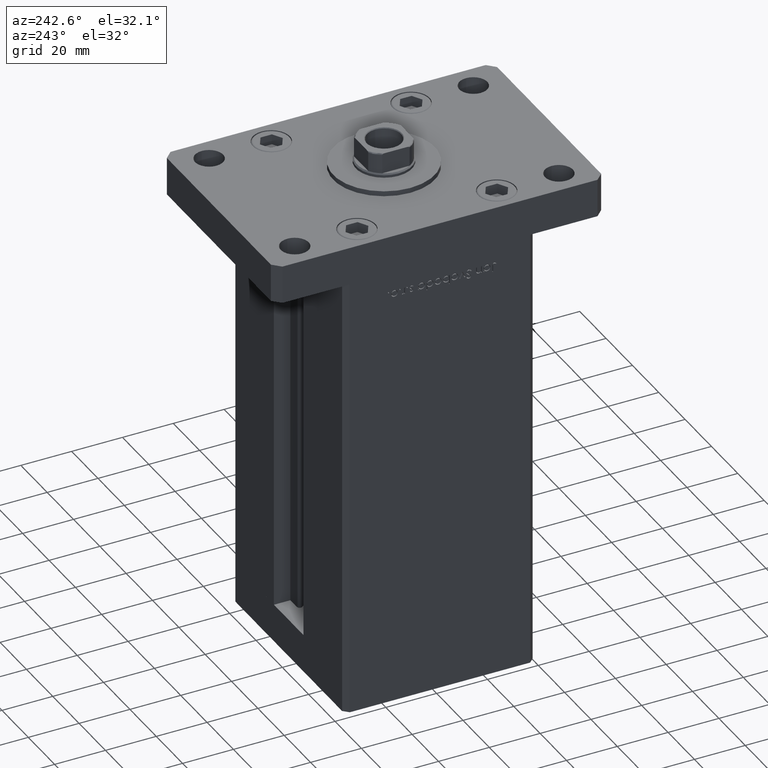
[diagram: clean part render]
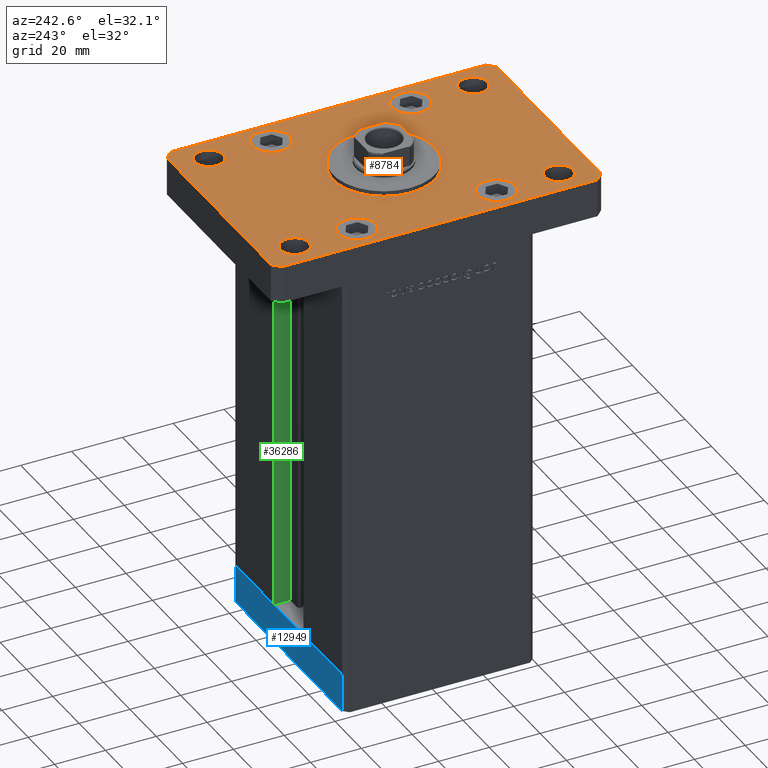
[diagram: same view with three faces highlighted in distinct colors, each labeled with its STEP entity id]
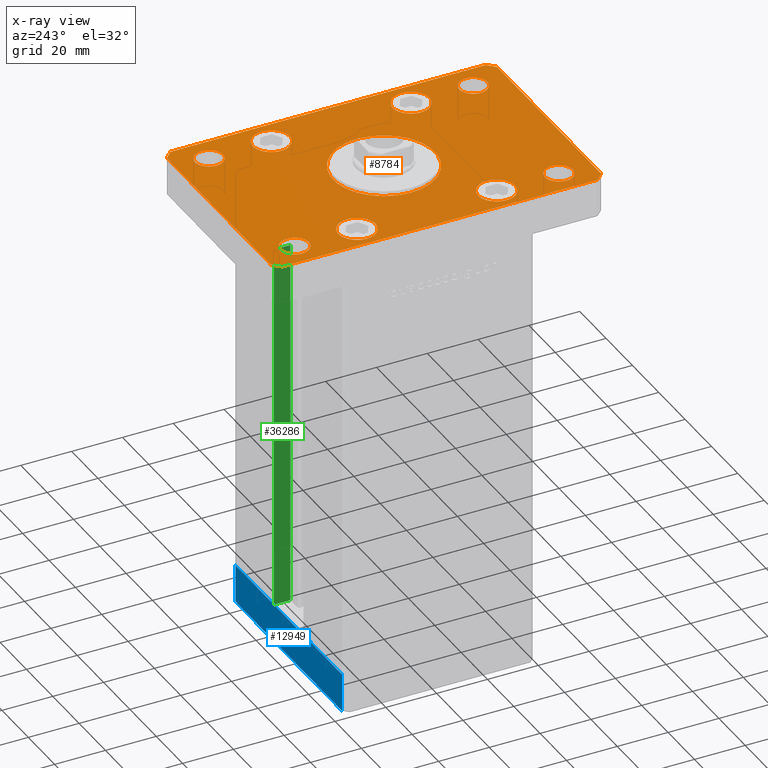
[diagram: x-ray of the same camera — body ghosted, the three highlighted faces saturated]
A machine part, auxiliary view with three faces highlighted in distinct colors.
The next image is the same camera in x-ray (body ghosted, the three faces saturated) — at least one of them is partly hidden behind the body in this view.
Their STEP definitions:

[orange] entity #8784 — the highlighted planar face has unit normal (0, 0, 1).
#30 = CARTESIAN_POINT ( 'NONE',  ( 0.000000000000000000, 0.000000000000000000, 15.00000000000000000 ) ) ;
#172 = CARTESIAN_POINT ( 'NONE',  ( 32.50000000000000000, 27.50000000000000000, 15.00000000000000000 ) ) ;
#607 = VERTEX_POINT ( 'NONE', #11427 ) ;
#612 = VERTEX_POINT ( 'NONE', #24707 ) ;
#641 = AXIS2_PLACEMENT_3D ( 'NONE', #1783, #6628, #35139 ) ;
#893 = CARTESIAN_POINT ( 'NONE',  ( 39.50000000000001421, -64.99999999999988631, 15.00000000000000000 ) ) ;
#968 = EDGE_CURVE ( 'NONE', #40376, #50865, #12633, .T. ) ;
#977 = PLANE ( 'NONE',  #42331 ) ;
#985 = CIRCLE ( 'NONE', #21788, 7.249999999999999112 ) ;
#1013 = VERTEX_POINT ( 'NONE', #29254 ) ;
#1404 = VERTEX_POINT ( 'NONE', #50053 ) ;
#1463 = AXIS2_PLACEMENT_3D ( 'NONE', #35629, #39692, #44299 ) ;
#1510 = AXIS2_PLACEMENT_3D ( 'NONE', #44516, #13294, #46373 ) ;
#1511 = EDGE_CURVE ( 'NONE', #14887, #41503, #4358, .T. ) ;
#1783 = CARTESIAN_POINT ( 'NONE',  ( 32.50000000000000000, 51.99999999999999289, 15.00000000000000000 ) ) ;
#1980 = DIRECTION ( 'NONE',  ( 1.000000000000000000, 1.405345600791337191E-15, 0.000000000000000000 ) ) ;
#2597 = ORIENTED_EDGE ( 'NONE', *, *, #18924, .F. ) ;
#2843 = EDGE_CURVE ( 'NONE', #31064, #19891, #49944, .T. ) ;
#3367 = AXIS2_PLACEMENT_3D ( 'NONE', #46487, #33764, #42428 ) ;
#3481 = DIRECTION ( 'NONE',  ( 0.000000000000000000, 0.000000000000000000, 1.000000000000000000 ) ) ;
#3834 = CARTESIAN_POINT ( 'NONE',  ( 39.50000000000002842, 65.00000000000002842, 15.00000000000000000 ) ) ;
#3898 = CARTESIAN_POINT ( 'NONE',  ( 42.50000000000000000, -61.99999999999988631, 15.00000000000000000 ) ) ;
#4227 = DIRECTION ( 'NONE',  ( 0.000000000000000000, 0.000000000000000000, 1.000000000000000000 ) ) ;
#4240 = CARTESIAN_POINT ( 'NONE',  ( 32.50000000000000000, 27.50000000000000000, 15.00000000000000000 ) ) ;
#4358 = LINE ( 'NONE', #3834, #17008 ) ;
#4468 = CIRCLE ( 'NONE', #51250, 7.249999999999999112 ) ;
#4472 = ORIENTED_EDGE ( 'NONE', *, *, #9179, .F. ) ;
#4646 = CARTESIAN_POINT ( 'NONE',  ( -32.50000000000000000, -27.50000000000000000, 15.00000000000000000 ) ) ;
#4847 = DIRECTION ( 'NONE',  ( 0.000000000000000000, 0.000000000000000000, 1.000000000000000000 ) ) ;
#5204 = DIRECTION ( 'NONE',  ( 1.000000000000000000, 0.000000000000000000, 0.000000000000000000 ) ) ;
#5692 = DIRECTION ( 'NONE',  ( 0.000000000000000000, 0.000000000000000000, 1.000000000000000000 ) ) ;
#5824 = FACE_BOUND ( 'NONE', #20035, .T. ) ;
#5846 = CARTESIAN_POINT ( 'NONE',  ( 39.50000000000002842, 65.00000000000002842, 15.00000000000000000 ) ) ;
#6035 = LINE ( 'NONE', #14447, #44969 ) ;
#6233 = DIRECTION ( 'NONE',  ( -0.7071067811865466846, -0.7071067811865483499, 0.000000000000000000 ) ) ;
#6628 = DIRECTION ( 'NONE',  ( 0.000000000000000000, 0.000000000000000000, 1.000000000000000000 ) ) ;
#7046 = VERTEX_POINT ( 'NONE', #13743 ) ;
#7283 = VERTEX_POINT ( 'NONE', #9595 ) ;
#7331 = CARTESIAN_POINT ( 'NONE',  ( -39.50000000000003553, 65.00000000000000000, 15.00000000000000000 ) ) ;
#7421 = AXIS2_PLACEMENT_3D ( 'NONE', #29370, #29903, #5204 ) ;
#7703 = CIRCLE ( 'NONE', #16401, 5.499999999999998224 ) ;
#8784 = ADVANCED_FACE ( 'NONE', ( #42982, #34071, #46265, #8830, #9090, #25659, #17783, #30269, #21600, #5824 ), #977, .T. ) ;
#8830 = FACE_BOUND ( 'NONE', #12123, .T. ) ;
#9081 = CIRCLE ( 'NONE', #37715, 5.499999999999994671 ) ;
#9090 = FACE_BOUND ( 'NONE', #19693, .T. ) ;
#9179 = EDGE_CURVE ( 'NONE', #42311, #34717, #7703, .T. ) ;
#9595 = CARTESIAN_POINT ( 'NONE',  ( -27.00000000000000711, 52.00000000000000000, 15.00000000000000000 ) ) ;
#10025 = EDGE_CURVE ( 'NONE', #33515, #13652, #6035, .T. ) ;
#10070 = DIRECTION ( 'NONE',  ( 0.7071067811865459074, 0.7071067811865491270, 0.000000000000000000 ) ) ;
#10118 = ORIENTED_EDGE ( 'NONE', *, *, #22220, .F. ) ;
#10485 = CARTESIAN_POINT ( 'NONE',  ( 42.50000000000000000, -61.99999999999988631, 15.00000000000000000 ) ) ;
#10562 = LINE ( 'NONE', #46929, #15446 ) ;
#10752 = LINE ( 'NONE', #35725, #46984 ) ;
#11355 = CARTESIAN_POINT ( 'NONE',  ( -39.75000000000000000, -27.50000000000000000, 15.00000000000000000 ) ) ;
#11427 = CARTESIAN_POINT ( 'NONE',  ( -42.50000000000002132, 62.00000000000000711, 15.00000000000000000 ) ) ;
#11440 = DIRECTION ( 'NONE',  ( -1.000000000000000000, -3.513364001978340512E-16, 0.000000000000000000 ) ) ;
#11533 = DIRECTION ( 'NONE',  ( 0.7071067811865483499, -0.7071067811865466846, 0.000000000000000000 ) ) ;
#11537 = VERTEX_POINT ( 'NONE', #38727 ) ;
#12027 = CIRCLE ( 'NONE', #3367, 7.249999999999999112 ) ;
#12046 = AXIS2_PLACEMENT_3D ( 'NONE', #51270, #5692, #46925 ) ;
#12123 = EDGE_LOOP ( 'NONE', ( #37305, #32716 ) ) ;
#12392 = EDGE_CURVE ( 'NONE', #13652, #49145, #49973, .T. ) ;
#12513 = EDGE_CURVE ( 'NONE', #22794, #7283, #18057, .T. ) ;
#12633 = CIRCLE ( 'NONE', #35171, 7.249999999999999112 ) ;
#12988 = VECTOR ( 'NONE', #10070, 1000.000000000000114 ) ;
#13088 = DIRECTION ( 'NONE',  ( 2.238352872228137677E-16, -1.000000000000000000, 0.000000000000000000 ) ) ;
#13275 = ORIENTED_EDGE ( 'NONE', *, *, #12392, .T. ) ;
#13294 = DIRECTION ( 'NONE',  ( 0.000000000000000000, 0.000000000000000000, 1.000000000000000000 ) ) ;
#13513 = CARTESIAN_POINT ( 'NONE',  ( 32.49999999999997868, -52.00000000000000711, 15.00000000000000000 ) ) ;
#13547 = EDGE_CURVE ( 'NONE', #612, #43955, #28518, .T. ) ;
#13652 = VERTEX_POINT ( 'NONE', #32274 ) ;
#13743 = CARTESIAN_POINT ( 'NONE',  ( -37.99999999999997868, -52.00000000000000711, 15.00000000000000000 ) ) ;
#13854 = DIRECTION ( 'NONE',  ( 0.000000000000000000, 0.000000000000000000, 1.000000000000000000 ) ) ;
#14103 = EDGE_CURVE ( 'NONE', #7283, #22794, #21630, .T. ) ;
#14325 = EDGE_CURVE ( 'NONE', #607, #1013, #49165, .T. ) ;
#14447 = CARTESIAN_POINT ( 'NONE',  ( -39.50000000000000000, -65.00000000000000000, 15.00000000000000000 ) ) ;
#14525 = CARTESIAN_POINT ( 'NONE',  ( -42.49999999999999289, -62.00000000000001421, 15.00000000000000000 ) ) ;
#14720 = VECTOR ( 'NONE', #11533, 1000.000000000000000 ) ;
#14801 = LINE ( 'NONE', #14525, #14720 ) ;
#14887 = VERTEX_POINT ( 'NONE', #5846 ) ;
#14927 = EDGE_CURVE ( 'NONE', #1013, #33515, #14801, .T. ) ;
#15446 = VECTOR ( 'NONE', #6233, 1000.000000000000000 ) ;
#15966 = ORIENTED_EDGE ( 'NONE', *, *, #26013, .F. ) ;
#16354 = AXIS2_PLACEMENT_3D ( 'NONE', #27449, #35318, #19051 ) ;
#16401 = AXIS2_PLACEMENT_3D ( 'NONE', #13513, #30077, #34140 ) ;
#16555 = AXIS2_PLACEMENT_3D ( 'NONE', #172, #4227, #33262 ) ;
#16581 = DIRECTION ( 'NONE',  ( 0.000000000000000000, 0.000000000000000000, 1.000000000000000000 ) ) ;
#16936 = CARTESIAN_POINT ( 'NONE',  ( 42.50000000000000000, 62.00000000000000711, 15.00000000000000000 ) ) ;
#17008 = VECTOR ( 'NONE', #11440, 1000.000000000000000 ) ;
#17783 = FACE_BOUND ( 'NONE', #19537, .T. ) ;
#17902 = AXIS2_PLACEMENT_3D ( 'NONE', #4240, #29758, #50071 ) ;
#18057 = CIRCLE ( 'NONE', #16354, 5.499999999999994671 ) ;
#18320 = CARTESIAN_POINT ( 'NONE',  ( -25.25000000000000000, -27.50000000000000000, 15.00000000000000000 ) ) ;
#18323 = DIRECTION ( 'NONE',  ( 1.000000000000000000, 0.000000000000000000, -0.000000000000000000 ) ) ;
#18562 = ORIENTED_EDGE ( 'NONE', *, *, #45902, .F. ) ;
#18924 = EDGE_CURVE ( 'NONE', #28496, #35907, #985, .T. ) ;
#19051 = DIRECTION ( 'NONE',  ( 1.000000000000000000, 0.000000000000000000, 0.000000000000000000 ) ) ;
#19537 = EDGE_LOOP ( 'NONE', ( #46316, #36299 ) ) ;
#19693 = EDGE_LOOP ( 'NONE', ( #21026, #18562 ) ) ;
#19891 = VERTEX_POINT ( 'NONE', #26607 ) ;
#20035 = EDGE_LOOP ( 'NONE', ( #4472, #41696 ) ) ;
#20042 = DIRECTION ( 'NONE',  ( 1.000000000000000000, 0.000000000000000000, 0.000000000000000000 ) ) ;
#20370 = EDGE_CURVE ( 'NONE', #7046, #1404, #9081, .T. ) ;
#20758 = CIRCLE ( 'NONE', #41533, 20.00000000000000000 ) ;
#21026 = ORIENTED_EDGE ( 'NONE', *, *, #20370, .F. ) ;
#21089 = VERTEX_POINT ( 'NONE', #42349 ) ;
#21151 = DIRECTION ( 'NONE',  ( 1.000000000000000000, 0.000000000000000000, 0.000000000000000000 ) ) ;
#21600 = FACE_BOUND ( 'NONE', #39612, .T. ) ;
#21630 = CIRCLE ( 'NONE', #27671, 5.499999999999994671 ) ;
#21788 = AXIS2_PLACEMENT_3D ( 'NONE', #4646, #13854, #46669 ) ;
#21936 = VERTEX_POINT ( 'NONE', #16936 ) ;
#21960 = ORIENTED_EDGE ( 'NONE', *, *, #29148, .T. ) ;
#22220 = EDGE_CURVE ( 'NONE', #11537, #44495, #48108, .T. ) ;
#22794 = VERTEX_POINT ( 'NONE', #34568 ) ;
#23466 = CIRCLE ( 'NONE', #36435, 5.499999999999991118 ) ;
#23826 = CARTESIAN_POINT ( 'NONE',  ( -32.50000000000000711, 27.50000000000000000, 15.00000000000000000 ) ) ;
#24707 = CARTESIAN_POINT ( 'NONE',  ( -20.00000000000000000, 0.000000000000000000, 15.00000000000000000 ) ) ;
#24717 = DIRECTION ( 'NONE',  ( 1.000000000000000000, 0.000000000000000000, 0.000000000000000000 ) ) ;
#24860 = DIRECTION ( 'NONE',  ( 1.000000000000000000, 0.000000000000000000, 0.000000000000000000 ) ) ;
#25354 = CIRCLE ( 'NONE', #16555, 7.249999999999999112 ) ;
#25659 = FACE_OUTER_BOUND ( 'NONE', #27375, .T. ) ;
#26013 = EDGE_CURVE ( 'NONE', #35907, #28496, #49969, .T. ) ;
#26130 = CARTESIAN_POINT ( 'NONE',  ( 27.00000000000001421, 51.99999999999999289, 15.00000000000000000 ) ) ;
#26216 = ORIENTED_EDGE ( 'NONE', *, *, #14325, .T. ) ;
#26607 = CARTESIAN_POINT ( 'NONE',  ( 39.75000000000000000, 27.50000000000000000, 15.00000000000000000 ) ) ;
#26924 = CARTESIAN_POINT ( 'NONE',  ( 26.99999999999998579, -52.00000000000000711, 15.00000000000000000 ) ) ;
#27099 = CARTESIAN_POINT ( 'NONE',  ( 39.75000000000000000, -27.50000000000000000, 15.00000000000000000 ) ) ;
#27335 = EDGE_CURVE ( 'NONE', #34717, #42311, #34419, .T. ) ;
#27375 = EDGE_LOOP ( 'NONE', ( #35906, #13275, #47700, #42813, #36723, #21960, #26216, #31986 ) ) ;
#27449 = CARTESIAN_POINT ( 'NONE',  ( -32.50000000000000000, 52.00000000000000000, 15.00000000000000000 ) ) ;
#27671 = AXIS2_PLACEMENT_3D ( 'NONE', #53087, #40874, #24860 ) ;
#28496 = VERTEX_POINT ( 'NONE', #18320 ) ;
#28518 = CIRCLE ( 'NONE', #12046, 20.00000000000000000 ) ;
#28809 = VERTEX_POINT ( 'NONE', #26130 ) ;
#29148 = EDGE_CURVE ( 'NONE', #41503, #607, #10562, .T. ) ;
#29254 = CARTESIAN_POINT ( 'NONE',  ( -42.49999999999999289, -62.00000000000001421, 15.00000000000000000 ) ) ;
#29370 = CARTESIAN_POINT ( 'NONE',  ( 32.50000000000000000, -27.50000000000000000, 15.00000000000000000 ) ) ;
#29459 = CARTESIAN_POINT ( 'NONE',  ( -32.49999999999997868, -52.00000000000000711, 15.00000000000000000 ) ) ;
#29758 = DIRECTION ( 'NONE',  ( 0.000000000000000000, 0.000000000000000000, 1.000000000000000000 ) ) ;
#29903 = DIRECTION ( 'NONE',  ( 0.000000000000000000, 0.000000000000000000, 1.000000000000000000 ) ) ;
#30061 = CARTESIAN_POINT ( 'NONE',  ( -32.50000000000000711, 27.50000000000000000, 15.00000000000000000 ) ) ;
#30077 = DIRECTION ( 'NONE',  ( 0.000000000000000000, 0.000000000000000000, 1.000000000000000000 ) ) ;
#30268 = DIRECTION ( 'NONE',  ( 0.000000000000000000, 0.000000000000000000, 1.000000000000000000 ) ) ;
#30269 = FACE_BOUND ( 'NONE', #43914, .T. ) ;
#30477 = EDGE_CURVE ( 'NONE', #21089, #28809, #46525, .T. ) ;
#31064 = VERTEX_POINT ( 'NONE', #40460 ) ;
#31986 = ORIENTED_EDGE ( 'NONE', *, *, #14927, .T. ) ;
#32205 = DIRECTION ( 'NONE',  ( -0.7071067811865417996, 0.7071067811865532349, 0.000000000000000000 ) ) ;
#32259 = ORIENTED_EDGE ( 'NONE', *, *, #2843, .F. ) ;
#32274 = CARTESIAN_POINT ( 'NONE',  ( 39.50000000000001421, -64.99999999999988631, 15.00000000000000000 ) ) ;
#32716 = ORIENTED_EDGE ( 'NONE', *, *, #14103, .F. ) ;
#33262 = DIRECTION ( 'NONE',  ( 1.000000000000000000, 0.000000000000000000, 0.000000000000000000 ) ) ;
#33515 = VERTEX_POINT ( 'NONE', #45163 ) ;
#33764 = DIRECTION ( 'NONE',  ( 0.000000000000000000, 0.000000000000000000, 1.000000000000000000 ) ) ;
#34071 = FACE_BOUND ( 'NONE', #37689, .T. ) ;
#34140 = DIRECTION ( 'NONE',  ( 1.000000000000000000, 0.000000000000000000, 0.000000000000000000 ) ) ;
#34337 = EDGE_CURVE ( 'NONE', #44495, #11537, #12027, .T. ) ;
#34419 = CIRCLE ( 'NONE', #1510, 5.499999999999998224 ) ;
#34568 = CARTESIAN_POINT ( 'NONE',  ( -38.00000000000000000, 52.00000000000000000, 15.00000000000000000 ) ) ;
#34717 = VERTEX_POINT ( 'NONE', #51311 ) ;
#34740 = CARTESIAN_POINT ( 'NONE',  ( -39.75000000000000711, 27.50000000000000000, 15.00000000000000000 ) ) ;
#34866 = CARTESIAN_POINT ( 'NONE',  ( 32.50000000000000000, 51.99999999999999289, 15.00000000000000000 ) ) ;
#35139 = DIRECTION ( 'NONE',  ( 1.000000000000000000, 0.000000000000000000, 0.000000000000000000 ) ) ;
#35171 = AXIS2_PLACEMENT_3D ( 'NONE', #30061, #49843, #41986 ) ;
#35318 = DIRECTION ( 'NONE',  ( 0.000000000000000000, 0.000000000000000000, 1.000000000000000000 ) ) ;
#35629 = CARTESIAN_POINT ( 'NONE',  ( -32.50000000000000000, -27.50000000000000000, 15.00000000000000000 ) ) ;
#35725 = CARTESIAN_POINT ( 'NONE',  ( 42.50000000000000000, 62.00000000000000711, 15.00000000000000000 ) ) ;
#35809 = ORIENTED_EDGE ( 'NONE', *, *, #968, .F. ) ;
#35906 = ORIENTED_EDGE ( 'NONE', *, *, #10025, .T. ) ;
#35907 = VERTEX_POINT ( 'NONE', #11355 ) ;
#36299 = ORIENTED_EDGE ( 'NONE', *, *, #30477, .F. ) ;
#36389 = EDGE_LOOP ( 'NONE', ( #10118, #37420 ) ) ;
#36435 = AXIS2_PLACEMENT_3D ( 'NONE', #34866, #30268, #40530 ) ;
#36603 = EDGE_LOOP ( 'NONE', ( #38471, #52758 ) ) ;
#36723 = ORIENTED_EDGE ( 'NONE', *, *, #1511, .T. ) ;
#37305 = ORIENTED_EDGE ( 'NONE', *, *, #12513, .F. ) ;
#37420 = ORIENTED_EDGE ( 'NONE', *, *, #34337, .F. ) ;
#37689 = EDGE_LOOP ( 'NONE', ( #35809, #42254 ) ) ;
#37715 = AXIS2_PLACEMENT_3D ( 'NONE', #41750, #4847, #21151 ) ;
#37750 = EDGE_CURVE ( 'NONE', #43955, #612, #20758, .T. ) ;
#38471 = ORIENTED_EDGE ( 'NONE', *, *, #13547, .F. ) ;
#38727 = CARTESIAN_POINT ( 'NONE',  ( 25.25000000000000000, -27.50000000000000000, 15.00000000000000000 ) ) ;
#39612 = EDGE_LOOP ( 'NONE', ( #32259, #48536 ) ) ;
#39692 = DIRECTION ( 'NONE',  ( 0.000000000000000000, 0.000000000000000000, 1.000000000000000000 ) ) ;
#39950 = EDGE_CURVE ( 'NONE', #28809, #21089, #23466, .T. ) ;
#40376 = VERTEX_POINT ( 'NONE', #34740 ) ;
#40460 = CARTESIAN_POINT ( 'NONE',  ( 25.25000000000000000, 27.50000000000000000, 15.00000000000000000 ) ) ;
#40530 = DIRECTION ( 'NONE',  ( 1.000000000000000000, 0.000000000000000000, 0.000000000000000000 ) ) ;
#40874 = DIRECTION ( 'NONE',  ( 0.000000000000000000, 0.000000000000000000, 1.000000000000000000 ) ) ;
#41109 = DIRECTION ( 'NONE',  ( 0.000000000000000000, 0.000000000000000000, 1.000000000000000000 ) ) ;
#41503 = VERTEX_POINT ( 'NONE', #7331 ) ;
#41533 = AXIS2_PLACEMENT_3D ( 'NONE', #30, #16581, #24717 ) ;
#41647 = DIRECTION ( 'NONE',  ( 1.000000000000000000, 0.000000000000000000, 0.000000000000000000 ) ) ;
#41696 = ORIENTED_EDGE ( 'NONE', *, *, #27335, .F. ) ;
#41750 = CARTESIAN_POINT ( 'NONE',  ( -32.49999999999997868, -52.00000000000000711, 15.00000000000000000 ) ) ;
#41761 = CIRCLE ( 'NONE', #45260, 5.499999999999994671 ) ;
#41986 = DIRECTION ( 'NONE',  ( 1.000000000000000000, 0.000000000000000000, 0.000000000000000000 ) ) ;
#42254 = ORIENTED_EDGE ( 'NONE', *, *, #44724, .F. ) ;
#42311 = VERTEX_POINT ( 'NONE', #26924 ) ;
#42331 = AXIS2_PLACEMENT_3D ( 'NONE', #42729, #50600, #18323 ) ;
#42349 = CARTESIAN_POINT ( 'NONE',  ( 37.99999999999999289, 51.99999999999999289, 15.00000000000000000 ) ) ;
#42428 = DIRECTION ( 'NONE',  ( 1.000000000000000000, 0.000000000000000000, 0.000000000000000000 ) ) ;
#42729 = CARTESIAN_POINT ( 'NONE',  ( 0.000000000000000000, 0.000000000000000000, 15.00000000000000000 ) ) ;
#42787 = LINE ( 'NONE', #10485, #46027 ) ;
#42813 = ORIENTED_EDGE ( 'NONE', *, *, #50917, .T. ) ;
#42892 = EDGE_CURVE ( 'NONE', #49145, #21936, #42787, .T. ) ;
#42982 = FACE_BOUND ( 'NONE', #36603, .T. ) ;
#43586 = DIRECTION ( 'NONE',  ( 0.000000000000000000, 1.000000000000000000, 0.000000000000000000 ) ) ;
#43914 = EDGE_LOOP ( 'NONE', ( #15966, #2597 ) ) ;
#43955 = VERTEX_POINT ( 'NONE', #43965 ) ;
#43965 = CARTESIAN_POINT ( 'NONE',  ( 20.00000000000000000, 2.449293598294706513E-15, 15.00000000000000000 ) ) ;
#44299 = DIRECTION ( 'NONE',  ( 1.000000000000000000, 0.000000000000000000, 0.000000000000000000 ) ) ;
#44495 = VERTEX_POINT ( 'NONE', #27099 ) ;
#44516 = CARTESIAN_POINT ( 'NONE',  ( 32.49999999999997868, -52.00000000000000711, 15.00000000000000000 ) ) ;
#44724 = EDGE_CURVE ( 'NONE', #50865, #40376, #4468, .T. ) ;
#44969 = VECTOR ( 'NONE', #1980, 1000.000000000000000 ) ;
#45163 = CARTESIAN_POINT ( 'NONE',  ( -39.50000000000000000, -65.00000000000000000, 15.00000000000000000 ) ) ;
#45260 = AXIS2_PLACEMENT_3D ( 'NONE', #29459, #41109, #41647 ) ;
#45633 = CARTESIAN_POINT ( 'NONE',  ( -42.50000000000002132, 62.00000000000000711, 15.00000000000000000 ) ) ;
#45902 = EDGE_CURVE ( 'NONE', #1404, #7046, #41761, .T. ) ;
#46027 = VECTOR ( 'NONE', #43586, 1000.000000000000000 ) ;
#46265 = FACE_BOUND ( 'NONE', #36389, .T. ) ;
#46316 = ORIENTED_EDGE ( 'NONE', *, *, #39950, .F. ) ;
#46373 = DIRECTION ( 'NONE',  ( 1.000000000000000000, 0.000000000000000000, 0.000000000000000000 ) ) ;
#46487 = CARTESIAN_POINT ( 'NONE',  ( 32.50000000000000000, -27.50000000000000000, 15.00000000000000000 ) ) ;
#46525 = CIRCLE ( 'NONE', #641, 5.499999999999991118 ) ;
#46669 = DIRECTION ( 'NONE',  ( 1.000000000000000000, 0.000000000000000000, 0.000000000000000000 ) ) ;
#46732 = VECTOR ( 'NONE', #13088, 1000.000000000000000 ) ;
#46925 = DIRECTION ( 'NONE',  ( 1.000000000000000000, 0.000000000000000000, 0.000000000000000000 ) ) ;
#46929 = CARTESIAN_POINT ( 'NONE',  ( -39.50000000000003553, 65.00000000000000000, 15.00000000000000000 ) ) ;
#46984 = VECTOR ( 'NONE', #32205, 1000.000000000000000 ) ;
#47074 = EDGE_CURVE ( 'NONE', #19891, #31064, #25354, .T. ) ;
#47700 = ORIENTED_EDGE ( 'NONE', *, *, #42892, .T. ) ;
#47914 = CARTESIAN_POINT ( 'NONE',  ( -25.25000000000000711, 27.50000000000000000, 15.00000000000000000 ) ) ;
#48108 = CIRCLE ( 'NONE', #7421, 7.249999999999999112 ) ;
#48536 = ORIENTED_EDGE ( 'NONE', *, *, #47074, .F. ) ;
#49145 = VERTEX_POINT ( 'NONE', #3898 ) ;
#49165 = LINE ( 'NONE', #45633, #46732 ) ;
#49843 = DIRECTION ( 'NONE',  ( 0.000000000000000000, 0.000000000000000000, 1.000000000000000000 ) ) ;
#49944 = CIRCLE ( 'NONE', #17902, 7.249999999999999112 ) ;
#49969 = CIRCLE ( 'NONE', #1463, 7.249999999999999112 ) ;
#49973 = LINE ( 'NONE', #893, #12988 ) ;
#50053 = CARTESIAN_POINT ( 'NONE',  ( -26.99999999999998579, -52.00000000000000711, 15.00000000000000000 ) ) ;
#50071 = DIRECTION ( 'NONE',  ( 1.000000000000000000, 0.000000000000000000, 0.000000000000000000 ) ) ;
#50600 = DIRECTION ( 'NONE',  ( 0.000000000000000000, 0.000000000000000000, 1.000000000000000000 ) ) ;
#50865 = VERTEX_POINT ( 'NONE', #47914 ) ;
#50917 = EDGE_CURVE ( 'NONE', #21936, #14887, #10752, .T. ) ;
#51250 = AXIS2_PLACEMENT_3D ( 'NONE', #23826, #3481, #20042 ) ;
#51270 = CARTESIAN_POINT ( 'NONE',  ( 0.000000000000000000, 0.000000000000000000, 15.00000000000000000 ) ) ;
#51311 = CARTESIAN_POINT ( 'NONE',  ( 37.99999999999997868, -52.00000000000000711, 15.00000000000000000 ) ) ;
#52758 = ORIENTED_EDGE ( 'NONE', *, *, #37750, .F. ) ;
#53087 = CARTESIAN_POINT ( 'NONE',  ( -32.50000000000000000, 52.00000000000000000, 15.00000000000000000 ) ) ;

[blue] entity #12949 — the highlighted planar face has unit normal (0, 1, 0).
#145 = VECTOR ( 'NONE', #19794, 1000.000000000000000 ) ;
#1204 = CARTESIAN_POINT ( 'NONE',  ( -40.50000000000000711, 37.49999999999997868, -15.00000000000000000 ) ) ;
#2147 = DIRECTION ( 'NONE',  ( -3.426614273534436165E-16, 1.000000000000000000, 0.000000000000000000 ) ) ;
#2669 = VECTOR ( 'NONE', #44612, 1000.000000000000000 ) ;
#2860 = EDGE_CURVE ( 'NONE', #30741, #24234, #25934, .T. ) ;
#5113 = AXIS2_PLACEMENT_3D ( 'NONE', #31987, #2147, #35244 ) ;
#5792 = LINE ( 'NONE', #1204, #45792 ) ;
#6712 = ORIENTED_EDGE ( 'NONE', *, *, #18357, .F. ) ;
#8772 = CARTESIAN_POINT ( 'NONE',  ( 40.49999999999991473, 37.50000000000000711, 0.000000000000000000 ) ) ;
#12446 = LINE ( 'NONE', #45527, #145 ) ;
#12949 = ADVANCED_FACE ( 'NONE', ( #26848 ), #43381, .T. ) ;
#13309 = CARTESIAN_POINT ( 'NONE',  ( 40.49999999999991473, 37.50000000000000711, -15.00000000000000000 ) ) ;
#15405 = ORIENTED_EDGE ( 'NONE', *, *, #2860, .F. ) ;
#15596 = CARTESIAN_POINT ( 'NONE',  ( 40.49999999999991473, 37.50000000000000711, -15.00000000000000000 ) ) ;
#17552 = ORIENTED_EDGE ( 'NONE', *, *, #43464, .T. ) ;
#18357 = EDGE_CURVE ( 'NONE', #25413, #30741, #52748, .T. ) ;
#19794 = DIRECTION ( 'NONE',  ( -1.000000000000000000, -3.426614273534436165E-16, 0.000000000000000000 ) ) ;
#21885 = CARTESIAN_POINT ( 'NONE',  ( 40.49999999999991473, 37.50000000000000711, 0.000000000000000000 ) ) ;
#24234 = VERTEX_POINT ( 'NONE', #27513 ) ;
#25413 = VERTEX_POINT ( 'NONE', #13309 ) ;
#25934 = LINE ( 'NONE', #21885, #37000 ) ;
#26848 = FACE_OUTER_BOUND ( 'NONE', #51783, .T. ) ;
#27513 = CARTESIAN_POINT ( 'NONE',  ( -40.50000000000000711, 37.49999999999997868, 0.000000000000000000 ) ) ;
#29543 = ORIENTED_EDGE ( 'NONE', *, *, #34376, .T. ) ;
#30741 = VERTEX_POINT ( 'NONE', #8772 ) ;
#31987 = CARTESIAN_POINT ( 'NONE',  ( 40.49999999999991473, 37.50000000000000711, -15.00000000000000000 ) ) ;
#34376 = EDGE_CURVE ( 'NONE', #43787, #24234, #5792, .T. ) ;
#35244 = DIRECTION ( 'NONE',  ( -1.000000000000000000, -3.426614273534436165E-16, 0.000000000000000000 ) ) ;
#37000 = VECTOR ( 'NONE', #52223, 1000.000000000000000 ) ;
#43381 = PLANE ( 'NONE',  #5113 ) ;
#43464 = EDGE_CURVE ( 'NONE', #25413, #43787, #12446, .T. ) ;
#43787 = VERTEX_POINT ( 'NONE', #51671 ) ;
#44612 = DIRECTION ( 'NONE',  ( 0.000000000000000000, 0.000000000000000000, 1.000000000000000000 ) ) ;
#45527 = CARTESIAN_POINT ( 'NONE',  ( 40.49999999999991473, 37.50000000000000711, -15.00000000000000000 ) ) ;
#45792 = VECTOR ( 'NONE', #50569, 1000.000000000000000 ) ;
#50569 = DIRECTION ( 'NONE',  ( 0.000000000000000000, 0.000000000000000000, 1.000000000000000000 ) ) ;
#51671 = CARTESIAN_POINT ( 'NONE',  ( -40.50000000000000711, 37.49999999999997868, -15.00000000000000000 ) ) ;
#51783 = EDGE_LOOP ( 'NONE', ( #15405, #6712, #17552, #29543 ) ) ;
#52223 = DIRECTION ( 'NONE',  ( -1.000000000000000000, -3.426614273534436165E-16, 0.000000000000000000 ) ) ;
#52748 = LINE ( 'NONE', #15596, #2669 ) ;

[green] entity #36286 — the highlighted planar face has unit normal (1, 0, 0).
#3137 = EDGE_CURVE ( 'NONE', #13170, #47801, #18010, .T. ) ;
#5132 = AXIS2_PLACEMENT_3D ( 'NONE', #19447, #15646, #11568 ) ;
#5493 = ORIENTED_EDGE ( 'NONE', *, *, #3137, .T. ) ;
#6594 = CARTESIAN_POINT ( 'NONE',  ( 11.25000000000000000, 0.000000000000000000, 146.5000000000000000 ) ) ;
#7251 = LINE ( 'NONE', #40089, #38566 ) ;
#8196 = CARTESIAN_POINT ( 'NONE',  ( 11.24999999999999289, 37.50000000000000000, 146.5000000000000000 ) ) ;
#9963 = VECTOR ( 'NONE', #12726, 1000.000000000000000 ) ;
#10341 = ORIENTED_EDGE ( 'NONE', *, *, #20573, .F. ) ;
#11568 = DIRECTION ( 'NONE',  ( 0.000000000000000000, 0.000000000000000000, -1.000000000000000000 ) ) ;
#12726 = DIRECTION ( 'NONE',  ( 0.000000000000000000, 1.000000000000000000, 0.000000000000000000 ) ) ;
#13170 = VERTEX_POINT ( 'NONE', #41061 ) ;
#15366 = PLANE ( 'NONE',  #5132 ) ;
#15646 = DIRECTION ( 'NONE',  ( 1.000000000000000000, -0.000000000000000000, 0.000000000000000000 ) ) ;
#16802 = LINE ( 'NONE', #20890, #9963 ) ;
#17504 = ORIENTED_EDGE ( 'NONE', *, *, #21257, .F. ) ;
#18010 = LINE ( 'NONE', #27502, #31760 ) ;
#19447 = CARTESIAN_POINT ( 'NONE',  ( 11.25000000000000000, 30.99999999999999289, 0.000000000000000000 ) ) ;
#19998 = FACE_OUTER_BOUND ( 'NONE', #33443, .T. ) ;
#20550 = DIRECTION ( 'NONE',  ( -0.000000000000000000, -0.000000000000000000, 1.000000000000000000 ) ) ;
#20573 = EDGE_CURVE ( 'NONE', #26915, #24258, #7251, .T. ) ;
#20890 = CARTESIAN_POINT ( 'NONE',  ( 11.25000000000000000, 30.99999999999999289, 0.000000000000000000 ) ) ;
#21257 = EDGE_CURVE ( 'NONE', #13170, #26915, #16802, .T. ) ;
#22466 = VECTOR ( 'NONE', #34845, 1000.000000000000000 ) ;
#23160 = DIRECTION ( 'NONE',  ( -0.000000000000000000, -0.000000000000000000, 1.000000000000000000 ) ) ;
#24258 = VERTEX_POINT ( 'NONE', #8196 ) ;
#26493 = CARTESIAN_POINT ( 'NONE',  ( 11.25000000000000000, 37.50000000000000000, 0.000000000000000000 ) ) ;
#26915 = VERTEX_POINT ( 'NONE', #26493 ) ;
#27240 = ORIENTED_EDGE ( 'NONE', *, *, #36546, .F. ) ;
#27502 = CARTESIAN_POINT ( 'NONE',  ( 11.25000000000000000, 30.99999999999999289, 0.000000000000000000 ) ) ;
#31760 = VECTOR ( 'NONE', #23160, 1000.000000000000000 ) ;
#33443 = EDGE_LOOP ( 'NONE', ( #10341, #17504, #5493, #27240 ) ) ;
#34845 = DIRECTION ( 'NONE',  ( -0.000000000000000000, -1.000000000000000000, 0.000000000000000000 ) ) ;
#36286 = ADVANCED_FACE ( 'NONE', ( #19998 ), #15366, .F. ) ;
#36546 = EDGE_CURVE ( 'NONE', #24258, #47801, #44038, .T. ) ;
#37112 = CARTESIAN_POINT ( 'NONE',  ( 11.25000000000000000, 30.99999999999999289, 146.5000000000000000 ) ) ;
#38566 = VECTOR ( 'NONE', #20550, 1000.000000000000000 ) ;
#40089 = CARTESIAN_POINT ( 'NONE',  ( 11.25000000000000000, 37.50000000000000000, 0.000000000000000000 ) ) ;
#41061 = CARTESIAN_POINT ( 'NONE',  ( 11.25000000000000000, 30.99999999999999289, 0.000000000000000000 ) ) ;
#44038 = LINE ( 'NONE', #6594, #22466 ) ;
#47801 = VERTEX_POINT ( 'NONE', #37112 ) ;